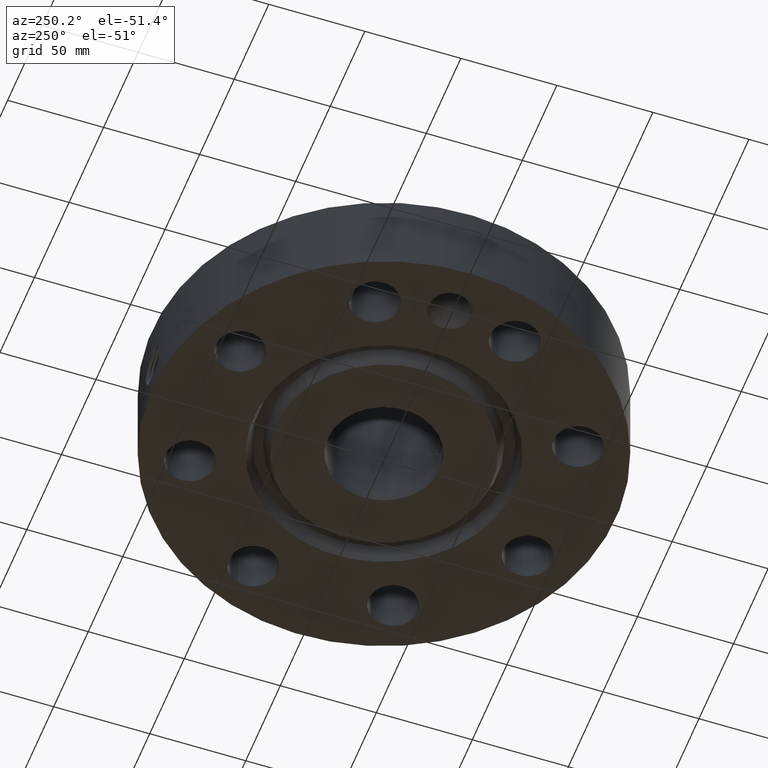
[diagram: clean part render]
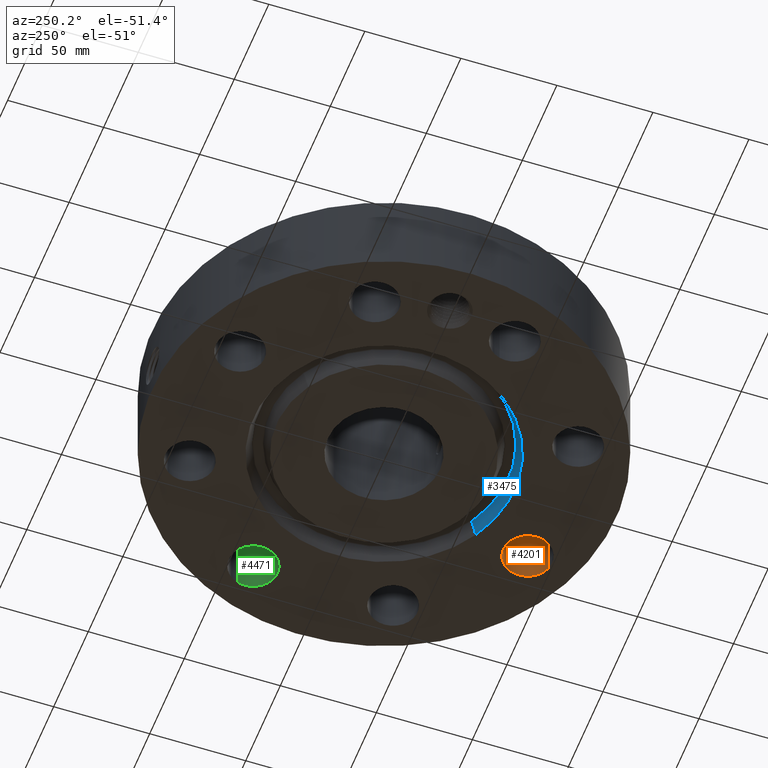
[diagram: same view with three faces highlighted in distinct colors, each labeled with its STEP entity id]
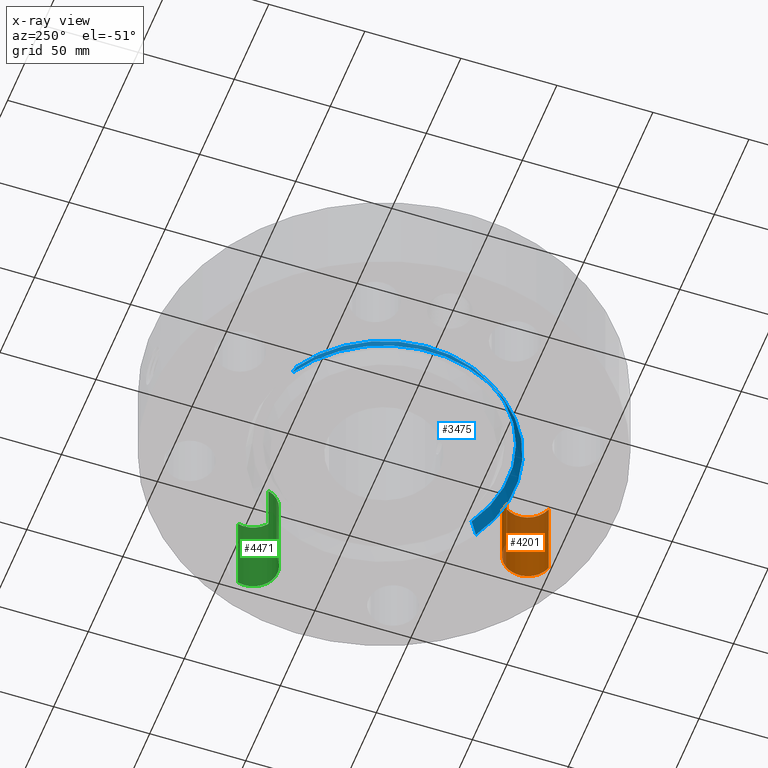
[diagram: x-ray of the same camera — body ghosted, the three highlighted faces saturated]
A machine part, auxiliary view with three faces highlighted in distinct colors.
The next image is the same camera in x-ray (body ghosted, the three faces saturated) — at least one of them is partly hidden behind the body in this view.
Their STEP definitions:

[orange] entity #4201 — the highlighted cylindrical surface (edge-blend (fillet) strip) has radius 12.7 mm, axis along (0, -0, -1).
#2985=AXIS2_PLACEMENT_3D('Circle Axis2P3D',#2983,#2984,$) ;
#4174=AXIS2_PLACEMENT_3D('Cylinder Axis2P3D',#4171,#4172,#4173) ;
#4185=AXIS2_PLACEMENT_3D('Circle Axis2P3D',#4183,#4184,$) ;
#2978=CARTESIAN_POINT('Vertex',(1.57583263695,-3.94432306193,1.81200000001)) ;
#2980=CARTESIAN_POINT('Vertex',(1.2942931058,-2.98477343194,1.81200000001)) ;
#2983=CARTESIAN_POINT('Axis2P3D Location',(1.43506287137,-3.46454824693,1.81200000001)) ;
#4171=CARTESIAN_POINT('Axis2P3D Location',(1.43506287137,-3.46454824693,1.80806299213)) ;
#4176=CARTESIAN_POINT('Line Origine',(1.2942931058,-2.98477343194,0.906000000004)) ;
#4180=CARTESIAN_POINT('Vertex',(1.2942931058,-2.98477343194,0.)) ;
#4183=CARTESIAN_POINT('Axis2P3D Location',(1.43506287137,-3.46454824693,0.)) ;
#4187=CARTESIAN_POINT('Vertex',(1.57583263695,-3.94432306193,0.)) ;
#4190=CARTESIAN_POINT('Line Origine',(1.57583263695,-3.94432306193,0.906000000004)) ;
#2984=DIRECTION('Axis2P3D Direction',(0.,0.,-0.0393700787402)) ;
#4172=DIRECTION('Axis2P3D Direction',(0.,-0.,-0.0393700787402)) ;
#4173=DIRECTION('Axis2P3D XDirection',(0.0110842335096,-0.0377775444876,0.)) ;
#4177=DIRECTION('Vector Direction',(0.,0.,-0.0393700787402)) ;
#4184=DIRECTION('Axis2P3D Direction',(0.,-0.,-0.0393700787402)) ;
#4191=DIRECTION('Vector Direction',(0.,0.,-0.0393700787402)) ;
#4178=VECTOR('Line Direction',#4177,0.0393700787402) ;
#4192=VECTOR('Line Direction',#4191,0.0393700787402) ;
#4196=ORIENTED_EDGE('',*,*,#4182,.F.) ;
#4197=ORIENTED_EDGE('',*,*,#4189,.T.) ;
#4198=ORIENTED_EDGE('',*,*,#4194,.T.) ;
#4199=ORIENTED_EDGE('',*,*,#2987,.F.) ;
#4201=ADVANCED_FACE('PartBody',(#4200),#4175,.F.) ;
#2986=CIRCLE('generated circle',#2985,0.500000000002) ;
#4186=CIRCLE('generated circle',#4185,0.500000000002) ;
#4175=CYLINDRICAL_SURFACE('generated cylinder',#4174,0.500000000002) ;
#2987=EDGE_CURVE('',#2981,#2979,#2986,.T.) ;
#4182=EDGE_CURVE('',#4181,#2981,#4179,.F.) ;
#4189=EDGE_CURVE('',#4181,#4188,#4186,.T.) ;
#4194=EDGE_CURVE('',#4188,#2979,#4193,.F.) ;
#4195=EDGE_LOOP('',(#4196,#4197,#4198,#4199)) ;
#4200=FACE_OUTER_BOUND('',#4195,.T.) ;
#4179=LINE('Line',#4176,#4178) ;
#4193=LINE('Line',#4190,#4192) ;
#2979=VERTEX_POINT('',#2978) ;
#2981=VERTEX_POINT('',#2980) ;
#4181=VERTEX_POINT('',#4180) ;
#4188=VERTEX_POINT('',#4187) ;

[blue] entity #3475 — the highlighted conical surface has half-angle 23 deg.
#2635=AXIS2_PLACEMENT_3D('Circle Axis2P3D',#2633,#2634,$) ;
#3436=AXIS2_PLACEMENT_3D('Cone Axis2P3D',#3433,#3434,#3435) ;
#3466=AXIS2_PLACEMENT_3D('Circle Axis2P3D',#3464,#3465,$) ;
#2611=CARTESIAN_POINT('Vertex',(1.22125143094,-2.23548574945,0.293721933856)) ;
#2613=CARTESIAN_POINT('Vertex',(-1.22125143094,2.23548574945,0.293721933856)) ;
#2633=CARTESIAN_POINT('Axis2P3D Location',(0.,0.,0.293721933856)) ;
#3433=CARTESIAN_POINT('Axis2P3D Location',(0.,0.,0.293721933856)) ;
#3442=CARTESIAN_POINT('Vertex',(-1.28102503916,2.34490060538,0.)) ;
#3444=CARTESIAN_POINT('Vertex',(1.28102503916,-2.34490060538,0.)) ;
#3447=CARTESIAN_POINT('Line Origine',(1.25113823505,-2.29019317742,0.146860966928)) ;
#3452=CARTESIAN_POINT('Line Origine',(-1.25113823505,2.29019317742,0.146860966928)) ;
#3464=CARTESIAN_POINT('Axis2P3D Location',(0.,0.,0.)) ;
#2634=DIRECTION('Axis2P3D Direction',(0.,0.,0.0393700787402)) ;
#3434=DIRECTION('Axis2P3D Direction',(-0.,-0.,-0.0393700787402)) ;
#3435=DIRECTION('Axis2P3D XDirection',(0.0188750212049,-0.0345504945626,0.)) ;
#3448=DIRECTION('Vector Direction',(0.00737505833565,-0.0134999537303,-0.0362403485611)) ;
#3453=DIRECTION('Vector Direction',(-0.00737505833565,0.0134999537303,-0.0362403485611)) ;
#3465=DIRECTION('Axis2P3D Direction',(0.,0.,-0.0393700787402)) ;
#3449=VECTOR('Line Direction',#3448,0.0393700787402) ;
#3454=VECTOR('Line Direction',#3453,0.0393700787402) ;
#3470=ORIENTED_EDGE('',*,*,#3468,.T.) ;
#3471=ORIENTED_EDGE('',*,*,#3456,.T.) ;
#3472=ORIENTED_EDGE('',*,*,#2637,.T.) ;
#3473=ORIENTED_EDGE('',*,*,#3451,.F.) ;
#3475=ADVANCED_FACE('PartBody',(#3474),#3437,.F.) ;
#2636=CIRCLE('generated circle',#2635,2.54732243612) ;
#3467=CIRCLE('generated circle',#3466,2.67200000001) ;
#3437=CONICAL_SURFACE('Cone',#3436,2.54732243612,0.401425727959) ;
#2637=EDGE_CURVE('',#2614,#2612,#2636,.T.) ;
#3451=EDGE_CURVE('',#3445,#2612,#3450,.F.) ;
#3456=EDGE_CURVE('',#3443,#2614,#3455,.F.) ;
#3468=EDGE_CURVE('',#3445,#3443,#3467,.T.) ;
#3469=EDGE_LOOP('',(#3470,#3471,#3472,#3473)) ;
#3474=FACE_OUTER_BOUND('',#3469,.T.) ;
#3450=LINE('Line',#3447,#3449) ;
#3455=LINE('Line',#3452,#3454) ;
#2612=VERTEX_POINT('',#2611) ;
#2614=VERTEX_POINT('',#2613) ;
#3443=VERTEX_POINT('',#3442) ;
#3445=VERTEX_POINT('',#3444) ;

[green] entity #4471 — the highlighted cylindrical surface (edge-blend (fillet) strip) has radius 12.7 mm, axis along (0, 0, -1).
#3084=AXIS2_PLACEMENT_3D('Circle Axis2P3D',#3082,#3083,$) ;
#4432=AXIS2_PLACEMENT_3D('Cylinder Axis2P3D',#4429,#4430,#4431) ;
#4462=AXIS2_PLACEMENT_3D('Circle Axis2P3D',#4460,#4461,$) ;
#3082=CARTESIAN_POINT('Axis2P3D Location',(3.46454824693,1.43506287137,1.81200000001)) ;
#3086=CARTESIAN_POINT('Vertex',(3.94432306193,1.57583263695,1.81200000001)) ;
#3088=CARTESIAN_POINT('Vertex',(2.98477343194,1.2942931058,1.81200000001)) ;
#4429=CARTESIAN_POINT('Axis2P3D Location',(3.46454824693,1.43506287137,1.80806299213)) ;
#4434=CARTESIAN_POINT('Line Origine',(2.98477343194,1.2942931058,0.906000000004)) ;
#4438=CARTESIAN_POINT('Vertex',(2.98477343194,1.2942931058,0.)) ;
#4445=CARTESIAN_POINT('Vertex',(3.94432306193,1.57583263695,0.)) ;
#4448=CARTESIAN_POINT('Line Origine',(3.94432306193,1.57583263695,0.906000000004)) ;
#4460=CARTESIAN_POINT('Axis2P3D Location',(3.46454824693,1.43506287137,0.)) ;
#3083=DIRECTION('Axis2P3D Direction',(0.,0.,-0.0393700787402)) ;
#4430=DIRECTION('Axis2P3D Direction',(0.,0.,-0.0393700787402)) ;
#4431=DIRECTION('Axis2P3D XDirection',(0.0377775444876,0.0110842335096,0.)) ;
#4435=DIRECTION('Vector Direction',(0.,0.,-0.0393700787402)) ;
#4449=DIRECTION('Vector Direction',(0.,0.,-0.0393700787402)) ;
#4461=DIRECTION('Axis2P3D Direction',(0.,0.,-0.0393700787402)) ;
#4436=VECTOR('Line Direction',#4435,0.0393700787402) ;
#4450=VECTOR('Line Direction',#4449,0.0393700787402) ;
#4466=ORIENTED_EDGE('',*,*,#4452,.F.) ;
#4467=ORIENTED_EDGE('',*,*,#4464,.T.) ;
#4468=ORIENTED_EDGE('',*,*,#4440,.T.) ;
#4469=ORIENTED_EDGE('',*,*,#3090,.F.) ;
#4471=ADVANCED_FACE('PartBody',(#4470),#4433,.F.) ;
#3085=CIRCLE('generated circle',#3084,0.500000000002) ;
#4463=CIRCLE('generated circle',#4462,0.500000000002) ;
#4433=CYLINDRICAL_SURFACE('generated cylinder',#4432,0.500000000002) ;
#3090=EDGE_CURVE('',#3087,#3089,#3085,.T.) ;
#4440=EDGE_CURVE('',#4439,#3089,#4437,.F.) ;
#4452=EDGE_CURVE('',#4446,#3087,#4451,.F.) ;
#4464=EDGE_CURVE('',#4446,#4439,#4463,.T.) ;
#4465=EDGE_LOOP('',(#4466,#4467,#4468,#4469)) ;
#4470=FACE_OUTER_BOUND('',#4465,.T.) ;
#4437=LINE('Line',#4434,#4436) ;
#4451=LINE('Line',#4448,#4450) ;
#3087=VERTEX_POINT('',#3086) ;
#3089=VERTEX_POINT('',#3088) ;
#4439=VERTEX_POINT('',#4438) ;
#4446=VERTEX_POINT('',#4445) ;